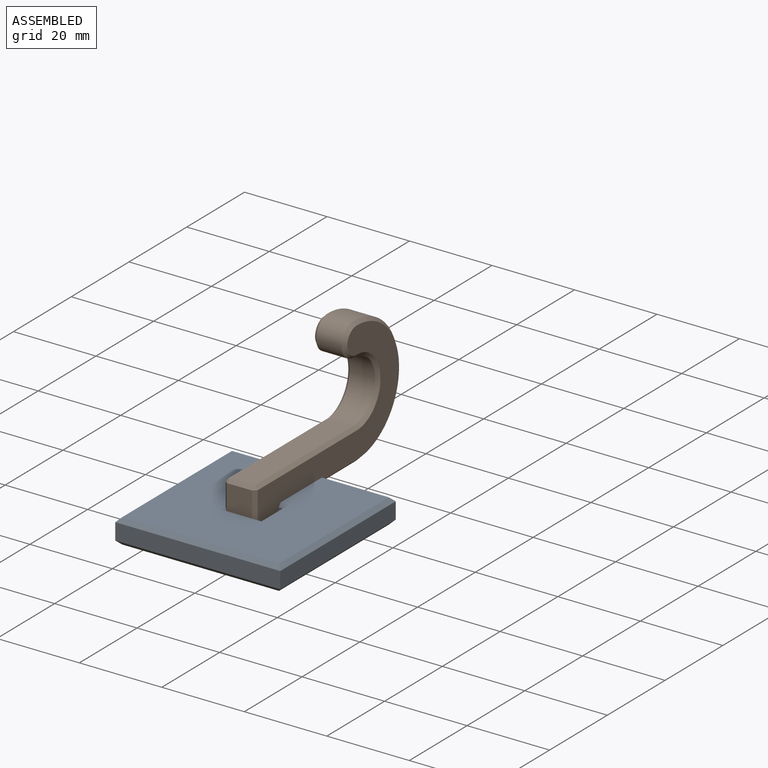
[diagram: assembled view]
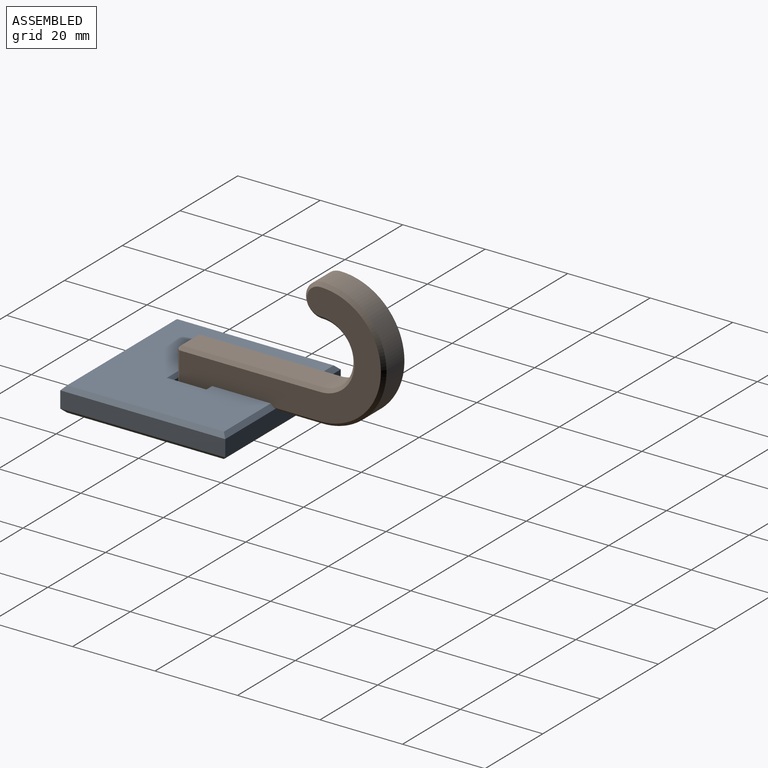
[diagram: assembled view, second angle]
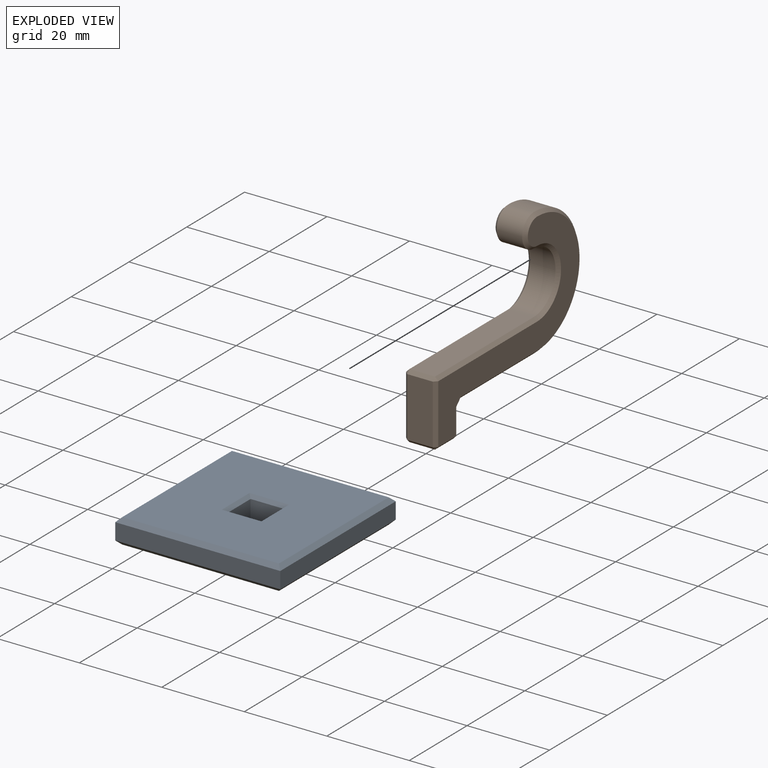
[diagram: exploded view]
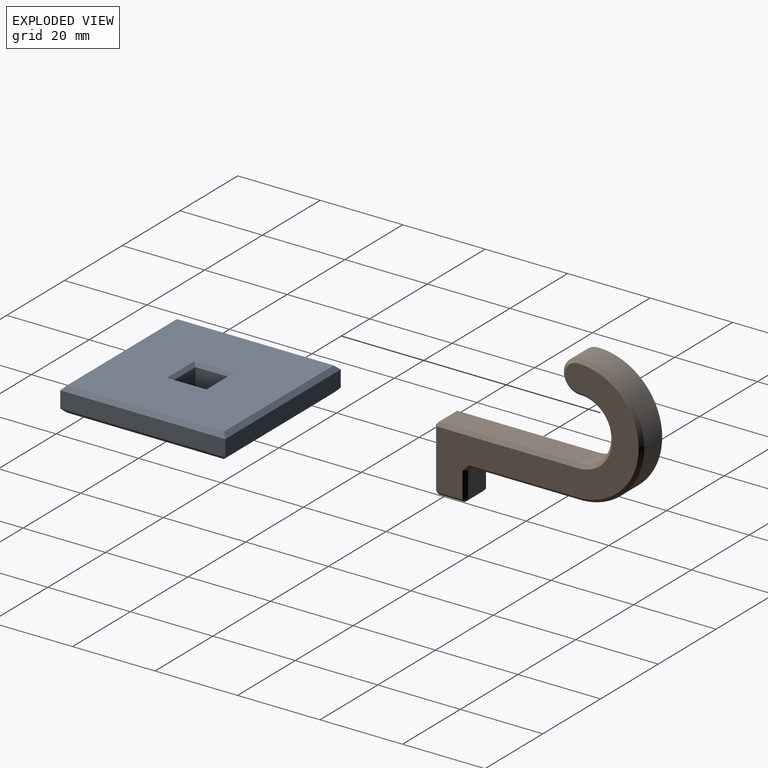
[diagram: exploded view, second angle]
FCSTD DOCUMENT  (FreeCAD 1.0RUnknown)
Label: mini-glued-hook
License: All rights reserved
LicenseURL: https://en.wikipedia.org/wiki/All_rights_reserved
objects: PartDesign::Chamfer×3, Sketcher::SketchObject×2, PartDesign::Pad×2, PartDesign::Body×2, App::Link×2, App::FeaturePython×2, Spreadsheet::Sheet×1, Assembly::JointGroup×1, Assembly::AssemblyObject×1
note: 21 computed .brp shape members not serialized (recipe doc carries the construction recipe); baked Part::Feature solids carry a one-line shape summary decoded from their .brp

FEATURE [Sketcher::SketchObject] Sketch
  ArcFitTolerance = 1e-06
  AttachmentSupport = -> [XY_Plane]
  FullyConstrained = true
  MakeInternals = false
  MapMode = 5
  expr: Constraints[19] = Spreadsheet.hole_size
  expr: Constraints[9] = Spreadsheet.base_size
  sketch-geometry (16):
    g0: LineSegment StartX=0 StartY=0 StartZ=0 EndX=40 EndY=0 EndZ=0
    g1: LineSegment StartX=40 StartY=0 StartZ=0 EndX=40 EndY=40 EndZ=0
    g2: LineSegment StartX=40 StartY=40 StartZ=0 EndX=0 EndY=40 EndZ=0
    g3: LineSegment StartX=0 StartY=40 StartZ=0 EndX=0 EndY=0 EndZ=0
    g4: LineSegment StartX=16 StartY=24 StartZ=0 EndX=16 EndY=16 EndZ=0
    g5: LineSegment StartX=16 StartY=16 StartZ=0 EndX=24 EndY=16 EndZ=0
    g6: LineSegment StartX=24 StartY=16 StartZ=0 EndX=24 EndY=24 EndZ=0
    g7: LineSegment StartX=24 StartY=24 StartZ=0 EndX=16 EndY=24 EndZ=0
    g8: LineSegment [constr] StartX=0 StartY=40 StartZ=0 EndX=0 EndY=24 EndZ=0
    g9: LineSegment [constr] StartX=0 StartY=24 StartZ=0 EndX=16 EndY=24 EndZ=0
    g10: LineSegment [constr] StartX=16 StartY=24 StartZ=0 EndX=16 EndY=40 EndZ=0
    g11: LineSegment [constr] StartX=16 StartY=40 StartZ=0 EndX=0 EndY=40 EndZ=0
    g12: LineSegment [constr] StartX=40 StartY=0 StartZ=0 EndX=40 EndY=16 EndZ=0
    g13: LineSegment [constr] StartX=40 StartY=16 StartZ=0 EndX=24 EndY=16 EndZ=0
    g14: LineSegment [constr] StartX=24 StartY=16 StartZ=0 EndX=24 EndY=0 EndZ=0
    g15: LineSegment [constr] StartX=24 StartY=0 StartZ=0 EndX=40 EndY=0 EndZ=0
  constraints (43):
    c: Coincident(g0,g1)
    c: Coincident(g1,g2)
    c: Coincident(g2,g3)
    c: Coincident(g3,g0)
    c: Horizontal(g0)
    c: Horizontal(g2)
    c: Vertical(g1)
    c: Vertical(g3)
    c: Coincident(g0,g-1)
    c: DistanceY(g3,g3) = 40
    c: Equal(g2,g3)
    c: Coincident(g4,g5)
    c: Coincident(g5,g6)
    c: Coincident(g6,g7)
    c: Coincident(g7,g4)
    c: Vertical(g4)
    c: Vertical(g6)
    c: Horizontal(g5)
    c: Horizontal(g7)
    c: DistanceY(g6,g6) = 8
    c: Equal(g6,g7)
    c: Coincident(g8,g9)
    c: Coincident(g9,g10)
    c: Coincident(g10,g11)
    c: Coincident(g11,g8)
    c: Vertical(g8)
    c: Vertical(g10)
    c: Horizontal(g9)
    c: Horizontal(g11)
    c: Coincident(g8,g2)
    c: Coincident(g9,g4)
    c: Coincident(g12,g13)
    c: Coincident(g13,g14)
    c: Coincident(g14,g15)
    c: Coincident(g15,g12)
    c: Vertical(g12)
    c: Vertical(g14)
    c: Horizontal(g13)
    c: Horizontal(g15)
    c: Coincident(g12,g0)
    c: Coincident(g13,g5)
    c: Equal(g9,g10)
    c: Equal(g10,g14)
FEATURE [Spreadsheet::Sheet] Spreadsheet
  cells = A1='Tolerance; B1(tolerance)==0.2 mm; A2='Base Size; B2(base_size)==40 mm; A3='Hole Size; B3(hole_size)==8 mm; A4='Base Inside Chamfer; B4(base_inside_chamfer)==0.8 mm; A5='Base Outside Chamfer; B5(base_outside_chamfer)==1 mm; A6='Base Thickness; B6(base_thickness)==6 mm; A7='Hook Diameter; B7(hook_diameter)==15 mm; A8='Overhang; B8(overhang)==8 mm; A9='Hook Length; B9(hook_length)==35 mm; A10='Hook Chamfer; B10(hook_chamfer)==0.8 mm
FEATURE [PartDesign::Pad] Pad
  Direction = (0,0,1)
  Length = 6
  Length2 = 10
  Profile = -> Sketch
  ReferenceAxis = -> Sketch [N_Axis]
  Refine = true
  Suppressed = false
  Type = 0
  expr: Length = Spreadsheet.base_thickness
FEATURE [PartDesign::Chamfer] Chamfer
  Angle = 45
  Base = -> Pad [Edge7,Edge4,Edge6,Edge3,Edge12,Edge10,Edge9,Edge11]
  BaseFeature = -> Pad
  ChamferType = 0
  FlipDirection = false
  Refine = true
  Size = 1
  Size2 = 1
  SupportTransform = false
  Suppressed = false
  UseAllEdges = false
  expr: Size = Spreadsheet.base_outside_chamfer
FEATURE [PartDesign::Chamfer] Chamfer001
  Angle = 45
  Base = -> Chamfer [Edge25,Edge28,Edge35,Edge32,Edge33,Edge34,Edge27,Edge26]
  BaseFeature = -> Chamfer
  ChamferType = 0
  FlipDirection = false
  Refine = true
  Size = 0.8
  Size2 = 1
  SupportTransform = false
  Suppressed = false
  UseAllEdges = false
  expr: Size = Spreadsheet.base_inside_chamfer
FEATURE [PartDesign::Body] Body  label="Base"
  AllowCompound = false
  Group = -> [Sketch,Pad,Chamfer,Chamfer001]
  Origin = -> Origin
  Tip = -> Chamfer001
FEATURE [Sketcher::SketchObject] Sketch001
  ArcFitTolerance = 1e-06
  AttachmentSupport = -> [YZ_Plane001]
  FullyConstrained = true
  MakeInternals = false
  MapMode = 5
  Placement = pos=(0,0,0) rot=(0.57735,0.57735,0.57735;2.0944rad)
  expr: Constraints[10] = Spreadsheet.hole_size - Spreadsheet.tolerance
  expr: Constraints[28] = Spreadsheet.overhang
  expr: Constraints[29] = Spreadsheet.hook_length
  expr: Constraints[30] = Spreadsheet.hole_size
  expr: Constraints[9] = Spreadsheet.hook_diameter / 2
  sketch-geometry (11):
    g0: LineSegment StartX=0 StartY=0 StartZ=0 EndX=0 EndY=7.8 EndZ=0
    g1: LineSegment StartX=0 StartY=7.8 StartZ=0 EndX=16 EndY=7.8 EndZ=0
    g2: LineSegment StartX=0 StartY=0 StartZ=0 EndX=8 EndY=0 EndZ=0
    g3: LineSegment StartX=8 StartY=0 StartZ=0 EndX=8 EndY=-27.2 EndZ=0
    g4: LineSegment StartX=16 StartY=7.8 StartZ=0 EndX=16 EndY=-27.2 EndZ=0
    g5: LineSegment [constr] StartX=16 StartY=-27.2 StartZ=0 EndX=23.5 EndY=-27.2 EndZ=0
    g6: ArcOfCircle CenterX=23.5 CenterY=-27.2 CenterZ=0 NormalX=0 NormalY=0 NormalZ=1 AngleXU=0 Radius=7.5 StartAngle=3.14159 EndAngle=6.28319
    g7: LineSegment [constr] StartX=8 StartY=-27.2 StartZ=0 EndX=16 EndY=-27.2 EndZ=0
    g8: ArcOfCircle CenterX=23.5 CenterY=-27.2 CenterZ=0 NormalX=0 NormalY=0 NormalZ=1 AngleXU=0 Radius=15.5 StartAngle=3.14159 EndAngle=6.28319
    g9: ArcOfCircle CenterX=35 CenterY=-27.2 CenterZ=0 NormalX=0 NormalY=0 NormalZ=1 AngleXU=0 Radius=4 StartAngle=6.9282e-07 EndAngle=3.14159
    g10: LineSegment [constr] StartX=31 StartY=-27.2 StartZ=0 EndX=35 EndY=-27.2 EndZ=0
  constraints (31):
    c: Coincident(g0,g-1)
    c: PointOnObject(g0,g-2)
    c: Coincident(g1,g0)
    c: Horizontal(g1)
    c: Coincident(g2,g0)
    c: PointOnObject(g2,g-1)
    c: Vertical(g3)
    c: Vertical(g4)
    c: Horizontal(g5)
    c: DistanceX(g5,g5) = 7.5
    c: DistanceY(g0,g0) = 7.8
    c: Angle(g6) = 3.14159
    c: Coincident(g3,g2)
    c: Coincident(g4,g1)
    c: Coincident(g6,g4)
    c: Coincident(g5,g4)
    c: Coincident(g6,g5)
    c: Coincident(g7,g3)
    c: Coincident(g7,g4)
    c: Parallel(g7,g5)
    c: Angle(g8) = 3.14159
    c: Coincident(g8,g5)
    c: Coincident(g8,g3)
    c: Coincident(g9,g6)
    c: Coincident(g9,g8)
    c: Coincident(g10,g6)
    c: Coincident(g10,g9)
    c: Horizontal(g10)
    c: DistanceX(g2,g2) = 8
    c: DistanceY(g4,g4) = 35
    c: DistanceX(g7,g7) = 8
FEATURE [PartDesign::Pad] Pad001
  Direction = (1,0,0)
  Length = 7.8
  Length2 = 10
  Placement = pos=(0,0,0) rot=(1,1,1;2.0944rad)
  Profile = -> Sketch001
  ReferenceAxis = -> Sketch001 [N_Axis]
  Refine = true
  Suppressed = false
  Type = 0
  expr: Length = Spreadsheet.hole_size - Spreadsheet.tolerance
FEATURE [PartDesign::Chamfer] Chamfer002
  Angle = 45
  Base = -> Pad001 [Edge1,Edge2,Edge3,Edge4,Edge5,Edge6,Edge7,Edge8,Edge9,Edge10,Edge11,Edge12,Edge13,Edge14,Edge15,Edge16,Edge17,Edge18,Edge19,Edge20,Edge21,Edge22,Edge23,Edge24]
  BaseFeature = -> Pad001
  ChamferType = 0
  FlipDirection = false
  Placement = pos=(0,0,0) rot=(1,1,1;2.0944rad)
  Refine = true
  Size = 0.8
  Size2 = 1
  SupportTransform = false
  Suppressed = false
  UseAllEdges = true
  expr: Size = Spreadsheet.hook_chamfer
FEATURE [PartDesign::Body] Body001  label="Hook"
  AllowCompound = false
  Group = -> [Sketch001,Pad001,Chamfer002]
  Origin = -> Origin001
  Tip = -> Chamfer002
FEATURE [App::Link] Base  label="Base001"
  LinkPlacement = pos=(0,1,0) rot=(0,0,1;0rad)
  LinkedObject = -> Body
  Placement = pos=(0,1,0) rot=(0,0,1;0rad)
FEATURE [App::FeaturePython] GroundedJoint  # Assembly grounded joint (typed FeaturePython)
  ObjectToGround = -> Base
FEATURE [App::Link] Hook001
  LinkPlacement = pos=(15,24.8,-3.5) rot=(-1,0,0;4.71239rad)
  LinkedObject = -> Body001
  Placement = pos=(15,24.8,-3.5) rot=(-1,0,0;4.71239rad)
FEATURE [App::FeaturePython] Joint001  label="Fixed"  # Assembly joint (typed FeaturePython)
  Activated = true
  AngleMax = 0
  AngleMin = 0
  Detach1 = false
  Detach2 = false
  Distance = 0
  Distance2 = 0
  EnableAngleMax = false
  EnableAngleMin = false
  EnableLengthMax = false
  EnableLengthMin = false
  JointType = 0 (Fixed)
  LengthMax = 0
  LengthMin = 0
  Offset1 = pos=(0,2,4) rot=(0,0,1;0rad)
  Offset2 = pos=(0,0,0) rot=(0,0,1;1.5708rad)
  Placement1 = pos=(16,18,7) rot=(0,0,1;0rad)
  Placement2 = pos=(0,0,0) rot=(0,0,1;1.5708rad)
  Reference1 = -> Assembly [Base.Edge27,Base.Edge27]
  Reference2 = -> Assembly [Hook.Edge23,Hook.Edge23]
FEATURE [Assembly::JointGroup] Joints
  Group = -> [GroundedJoint,Joint001]
FEATURE [Assembly::AssemblyObject] Assembly
  Group = -> [Joints,Base,GroundedJoint,Hook001,Joint001]
  Origin = -> Origin002
  Type = Assembly
